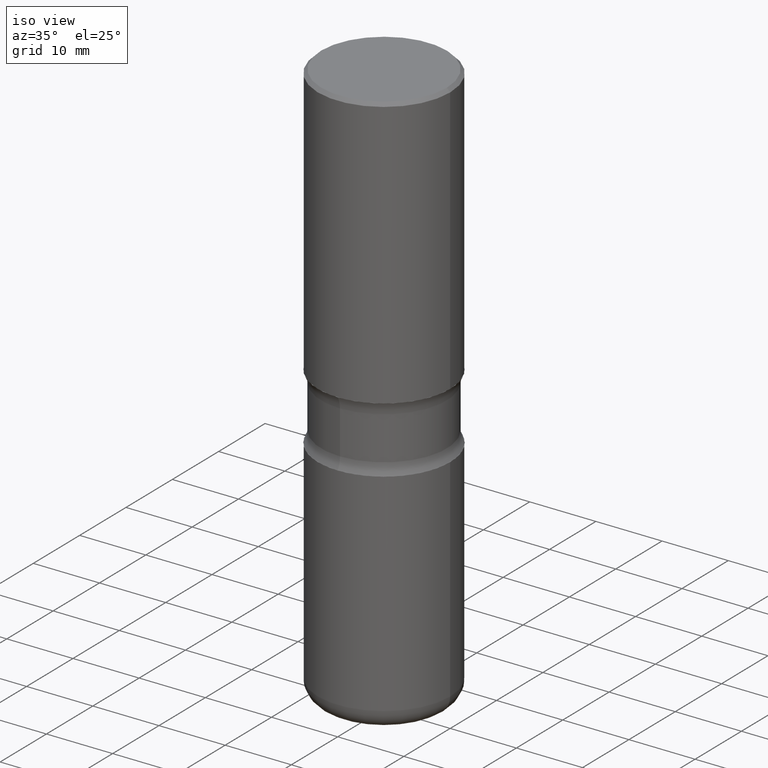
[diagram: clean part render]
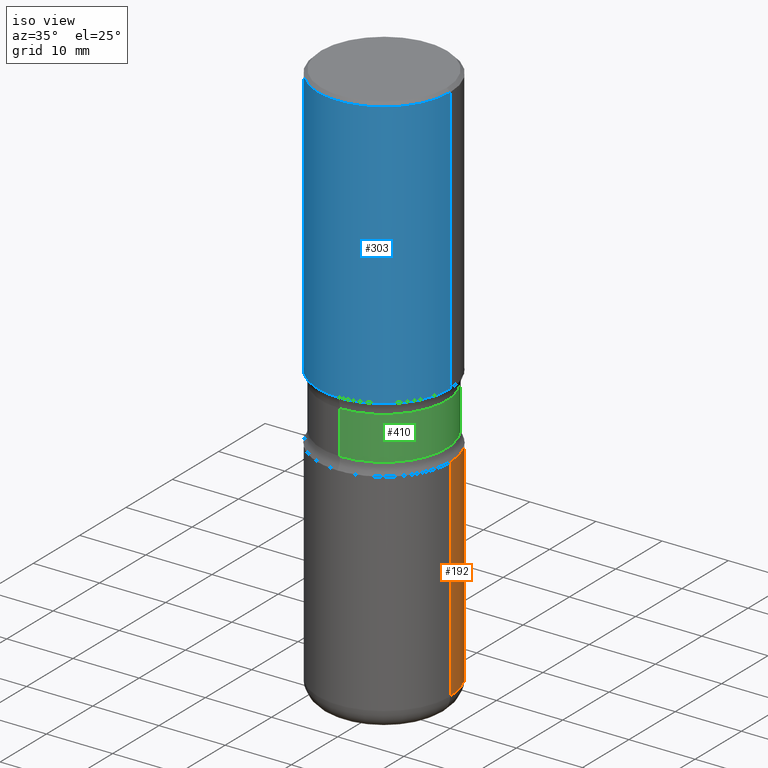
[diagram: same view with three faces highlighted in distinct colors, each labeled with its STEP entity id]
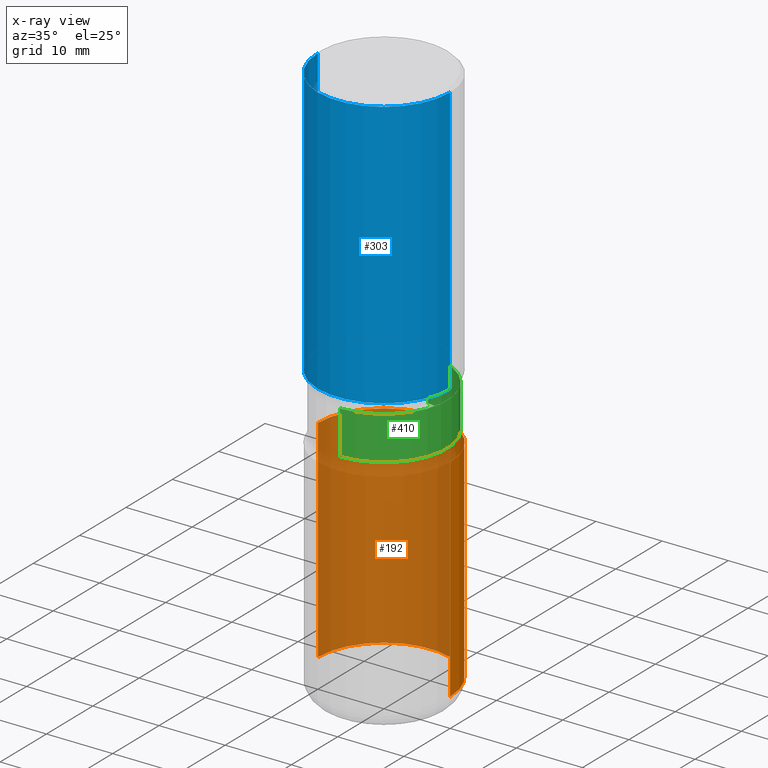
[diagram: x-ray of the same camera — body ghosted, the three highlighted faces saturated]
A machine part, iso view with three faces highlighted in distinct colors.
The next image is the same camera in x-ray (body ghosted, the three faces saturated) — at least one of them is partly hidden behind the body in this view.
Their STEP definitions:

[orange] entity #192 — the highlighted cylindrical surface (partial cylindrical patch) has radius 10 mm, axis along (-0, 0, 1).
#7 = VERTEX_POINT ( 'NONE', #78 ) ;
#10 = DIRECTION ( 'NONE',  ( -2.445468806185136877E-29, 3.491481338843145188E-15, 1.000000000000000000 ) ) ;
#18 = DIRECTION ( 'NONE',  ( -2.445468806185136597E-29, 3.491481338843145583E-15, 1.000000000000000000 ) ) ;
#23 = VECTOR ( 'NONE', #10, 39.37007874015748143 ) ;
#29 = CARTESIAN_POINT ( 'NONE',  ( 0.3937000000000006605, -2.749192406205087950E-15, 1.919750796630863254E-29 ) ) ;
#51 = CARTESIAN_POINT ( 'NONE',  ( 0.3937000000000006605, -1.415830597714283597E-14, -3.267700000000000937 ) ) ;
#70 = VERTEX_POINT ( 'NONE', #457 ) ;
#72 = LINE ( 'NONE', #29, #376 ) ;
#78 = CARTESIAN_POINT ( 'NONE',  ( -0.3937000000000006605, -8.611706820250229288E-15, -3.267700000000000937 ) ) ;
#84 = EDGE_LOOP ( 'NONE', ( #322, #154, #244, #459 ) ) ;
#89 = AXIS2_PLACEMENT_3D ( 'NONE', #109, #279, #408 ) ;
#91 = DIRECTION ( 'NONE',  ( 1.000000000000000000, -6.982962677686266711E-15, 4.876176775795936353E-29 ) ) ;
#99 = EDGE_CURVE ( 'NONE', #206, #70, #72, .T. ) ;
#109 = CARTESIAN_POINT ( 'NONE',  ( 4.910012269058516525E-29, -7.010196232129267410E-15, -2.007800000000000029 ) ) ;
#131 = AXIS2_PLACEMENT_3D ( 'NONE', #310, #18, #190 ) ;
#134 = CYLINDRICAL_SURFACE ( 'NONE', #245, 0.3937000000000006605 ) ;
#142 = CIRCLE ( 'NONE', #89, 0.3937000000000007160 ) ;
#145 = VERTEX_POINT ( 'NONE', #479 ) ;
#154 = ORIENTED_EDGE ( 'NONE', *, *, #215, .T. ) ;
#184 = LINE ( 'NONE', #381, #23 ) ;
#190 = DIRECTION ( 'NONE',  ( 1.000000000000000000, -6.982962677686266711E-15, 0.000000000000000000 ) ) ;
#192 = ADVANCED_FACE ( 'NONE', ( #519 ), #134, .T. ) ;
#202 = DIRECTION ( 'NONE',  ( -2.445468806185136877E-29, 3.491481338843145188E-15, 1.000000000000000000 ) ) ;
#206 = VERTEX_POINT ( 'NONE', #51 ) ;
#215 = EDGE_CURVE ( 'NONE', #7, #145, #184, .T. ) ;
#244 = ORIENTED_EDGE ( 'NONE', *, *, #384, .F. ) ;
#245 = AXIS2_PLACEMENT_3D ( 'NONE', #387, #436, #91 ) ;
#279 = DIRECTION ( 'NONE',  ( -2.445468806185136597E-29, 3.491481338843145583E-15, 1.000000000000000000 ) ) ;
#309 = EDGE_CURVE ( 'NONE', #206, #7, #388, .T. ) ;
#310 = CARTESIAN_POINT ( 'NONE',  ( 7.991058417971172834E-29, -1.140911357093774960E-14, -3.267700000000000937 ) ) ;
#322 = ORIENTED_EDGE ( 'NONE', *, *, #309, .T. ) ;
#376 = VECTOR ( 'NONE', #202, 39.37007874015748143 ) ;
#381 = CARTESIAN_POINT ( 'NONE',  ( -0.3937000000000006605, 2.797406750687519125E-15, -1.936584745033359538E-29 ) ) ;
#384 = EDGE_CURVE ( 'NONE', #70, #145, #142, .T. ) ;
#387 = CARTESIAN_POINT ( 'NONE',  ( 0.000000000000000000, 0.000000000000000000, 0.000000000000000000 ) ) ;
#388 = CIRCLE ( 'NONE', #131, 0.3937000000000006605 ) ;
#408 = DIRECTION ( 'NONE',  ( 1.000000000000000000, -6.982962677686268288E-15, 0.000000000000000000 ) ) ;
#436 = DIRECTION ( 'NONE',  ( -2.445468806185136597E-29, 3.491481338843145583E-15, 1.000000000000000000 ) ) ;
#457 = CARTESIAN_POINT ( 'NONE',  ( 0.3937000000000007160, -9.759388638334355360E-15, -2.007800000000000029 ) ) ;
#459 = ORIENTED_EDGE ( 'NONE', *, *, #99, .F. ) ;
#479 = CARTESIAN_POINT ( 'NONE',  ( -0.3937000000000007160, -6.412248150845988194E-15, -2.007800000000000029 ) ) ;
#519 = FACE_OUTER_BOUND ( 'NONE', #84, .T. ) ;

[blue] entity #303 — the highlighted cylindrical surface (partial cylindrical patch) has radius 10 mm, axis along (-0, 0, 1).
#40 = DIRECTION ( 'NONE',  ( -2.445468806185136877E-29, 3.491481338843145188E-15, 1.000000000000000000 ) ) ;
#44 = CARTESIAN_POINT ( 'NONE',  ( -0.3937000000000004940, 2.797406750687517942E-15, -1.936584745033358697E-29 ) ) ;
#46 = CARTESIAN_POINT ( 'NONE',  ( 0.3937000000000006605, -8.384792435231810596E-15, -1.614100000000000090 ) ) ;
#56 = CARTESIAN_POINT ( 'NONE',  ( 0.000000000000000000, 0.000000000000000000, 0.000000000000000000 ) ) ;
#61 = CYLINDRICAL_SURFACE ( 'NONE', #228, 0.3937000000000004940 ) ;
#66 = ORIENTED_EDGE ( 'NONE', *, *, #144, .F. ) ;
#88 = EDGE_CURVE ( 'NONE', #108, #226, #411, .T. ) ;
#94 = DIRECTION ( 'NONE',  ( 1.000000000000000000, -6.982962677686266711E-15, 0.000000000000000000 ) ) ;
#104 = CARTESIAN_POINT ( 'NONE',  ( 3.947231200063429727E-29, -5.635600029026721857E-15, -1.614100000000000090 ) ) ;
#105 = VERTEX_POINT ( 'NONE', #224 ) ;
#108 = VERTEX_POINT ( 'NONE', #46 ) ;
#119 = VERTEX_POINT ( 'NONE', #174 ) ;
#141 = VECTOR ( 'NONE', #434, 39.37007874015748143 ) ;
#144 = EDGE_CURVE ( 'NONE', #119, #226, #536, .T. ) ;
#152 = CIRCLE ( 'NONE', #446, 0.3937000000000006605 ) ;
#159 = EDGE_CURVE ( 'NONE', #105, #119, #467, .T. ) ;
#164 = CARTESIAN_POINT ( 'NONE',  ( 0.3937000000000004940, -2.749192406205086766E-15, 1.919750796630862414E-29 ) ) ;
#174 = CARTESIAN_POINT ( 'NONE',  ( -0.3937000000000003830, 2.679362779428222679E-15, -0.02000000000000013572 ) ) ;
#178 = AXIS2_PLACEMENT_3D ( 'NONE', #304, #218, #94 ) ;
#194 = ORIENTED_EDGE ( 'NONE', *, *, #336, .T. ) ;
#197 = ORIENTED_EDGE ( 'NONE', *, *, #88, .T. ) ;
#218 = DIRECTION ( 'NONE',  ( -2.445468806185136597E-29, 3.491481338843145583E-15, 1.000000000000000000 ) ) ;
#224 = CARTESIAN_POINT ( 'NONE',  ( -0.3937000000000007160, -5.530807721427186863E-17, -1.614100000000000090 ) ) ;
#226 = VERTEX_POINT ( 'NONE', #560 ) ;
#228 = AXIS2_PLACEMENT_3D ( 'NONE', #56, #230, #277 ) ;
#230 = DIRECTION ( 'NONE',  ( -2.445468806185136597E-29, 3.491481338843145583E-15, 1.000000000000000000 ) ) ;
#275 = DIRECTION ( 'NONE',  ( -2.445468806185136597E-29, 3.491481338843145583E-15, 1.000000000000000000 ) ) ;
#277 = DIRECTION ( 'NONE',  ( 1.000000000000000000, -6.982962677686266711E-15, 4.876176775795935793E-29 ) ) ;
#303 = ADVANCED_FACE ( 'NONE', ( #365 ), #61, .T. ) ;
#304 = CARTESIAN_POINT ( 'NONE',  ( 4.890937612370306439E-31, -6.982962677686338448E-17, -0.02000000000000013572 ) ) ;
#327 = ORIENTED_EDGE ( 'NONE', *, *, #159, .F. ) ;
#336 = EDGE_CURVE ( 'NONE', #105, #108, #152, .T. ) ;
#365 = FACE_OUTER_BOUND ( 'NONE', #445, .T. ) ;
#411 = LINE ( 'NONE', #164, #488 ) ;
#434 = DIRECTION ( 'NONE',  ( -2.445468806185136877E-29, 3.491481338843145188E-15, 1.000000000000000000 ) ) ;
#445 = EDGE_LOOP ( 'NONE', ( #327, #194, #197, #66 ) ) ;
#446 = AXIS2_PLACEMENT_3D ( 'NONE', #104, #275, #448 ) ;
#448 = DIRECTION ( 'NONE',  ( 1.000000000000000000, -6.982962677686266711E-15, 0.000000000000000000 ) ) ;
#467 = LINE ( 'NONE', #44, #141 ) ;
#488 = VECTOR ( 'NONE', #40, 39.37007874015748143 ) ;
#536 = CIRCLE ( 'NONE', #178, 0.3937000000000003830 ) ;
#560 = CARTESIAN_POINT ( 'NONE',  ( 0.3937000000000003830, -2.770807688499518100E-15, -0.02000000000000013572 ) ) ;

[green] entity #410 — the highlighted cylindrical surface (partial cylindrical patch) has radius 9.4869 mm, axis along (0, -0, -1).
#11 = EDGE_LOOP ( 'NONE', ( #19, #438, #332, #276 ) ) ;
#16 = FACE_OUTER_BOUND ( 'NONE', #11, .T. ) ;
#19 = ORIENTED_EDGE ( 'NONE', *, *, #85, .T. ) ;
#30 = DIRECTION ( 'NONE',  ( 2.305016298612844398E-29, -3.692617323746948219E-15, -1.000000000000000000 ) ) ;
#31 = EDGE_CURVE ( 'NONE', #160, #373, #284, .T. ) ;
#39 = DIRECTION ( 'NONE',  ( 6.982962677686264344E-15, 1.000000000000000000, -3.657092360996334478E-15 ) ) ;
#60 = VECTOR ( 'NONE', #30, 39.37007874015748143 ) ;
#77 = DIRECTION ( 'NONE',  ( 2.305016298612844398E-29, -3.692617323746948219E-15, -1.000000000000000000 ) ) ;
#85 = EDGE_CURVE ( 'NONE', #311, #160, #123, .T. ) ;
#123 = CIRCLE ( 'NONE', #478, 0.3735000000000000542 ) ;
#124 = CIRCLE ( 'NONE', #299, 0.3735000000000002207 ) ;
#160 = VERTEX_POINT ( 'NONE', #351 ) ;
#162 = DIRECTION ( 'NONE',  ( 6.982962677686265922E-15, 1.000000000000000000, -4.388510833195602005E-15 ) ) ;
#169 = CARTESIAN_POINT ( 'NONE',  ( 2.608136560115902248E-15, 0.3734999999999880638, -3.385800000000001919 ) ) ;
#172 = CARTESIAN_POINT ( 'NONE',  ( 4.159572563337033897E-29, -5.807997939890574032E-15, -1.682231930840099476 ) ) ;
#210 = DIRECTION ( 'NONE',  ( 2.305016298612844398E-29, -3.692617323746948219E-15, -1.000000000000000000 ) ) ;
#219 = VECTOR ( 'NONE', #549, 39.37007874015748143 ) ;
#276 = ORIENTED_EDGE ( 'NONE', *, *, #494, .F. ) ;
#284 = LINE ( 'NONE', #290, #219 ) ;
#290 = CARTESIAN_POINT ( 'NONE',  ( -2.562396002167586553E-15, -0.3735000000000122111, -3.385799999999998811 ) ) ;
#291 = CARTESIAN_POINT ( 'NONE',  ( 4.752967058016124605E-29, -6.758611084008786993E-15, -1.939668069159900421 ) ) ;
#299 = AXIS2_PLACEMENT_3D ( 'NONE', #291, #77, #39 ) ;
#311 = VERTEX_POINT ( 'NONE', #484 ) ;
#316 = DIRECTION ( 'NONE',  ( 2.305016298612844398E-29, -3.692617323746948219E-15, -1.000000000000000000 ) ) ;
#319 = CARTESIAN_POINT ( 'NONE',  ( 2.608136560115869116E-15, 0.3734999999999934484, -1.939668069159901753 ) ) ;
#332 = ORIENTED_EDGE ( 'NONE', *, *, #486, .F. ) ;
#351 = CARTESIAN_POINT ( 'NONE',  ( -2.631687031945120480E-15, -0.3735000000000058828, -1.682231930840098144 ) ) ;
#355 = CYLINDRICAL_SURFACE ( 'NONE', #480, 0.3735000000000001097 ) ;
#364 = VERTEX_POINT ( 'NONE', #319 ) ;
#373 = VERTEX_POINT ( 'NONE', #493 ) ;
#410 = ADVANCED_FACE ( 'NONE', ( #16 ), #355, .T. ) ;
#422 = DIRECTION ( 'NONE',  ( 6.982962677686265922E-15, 1.000000000000000000, -3.657092360996336056E-15 ) ) ;
#438 = ORIENTED_EDGE ( 'NONE', *, *, #31, .T. ) ;
#478 = AXIS2_PLACEMENT_3D ( 'NONE', #172, #210, #422 ) ;
#480 = AXIS2_PLACEMENT_3D ( 'NONE', #529, #316, #162 ) ;
#484 = CARTESIAN_POINT ( 'NONE',  ( 2.608136560115862410E-15, 0.3734999999999942810, -1.682231930840100809 ) ) ;
#486 = EDGE_CURVE ( 'NONE', #364, #373, #124, .T. ) ;
#493 = CARTESIAN_POINT ( 'NONE',  ( -2.631687031945114169E-15, -0.3735000000000069376, -1.939668069159899089 ) ) ;
#494 = EDGE_CURVE ( 'NONE', #311, #364, #553, .T. ) ;
#529 = CARTESIAN_POINT ( 'NONE',  ( 8.086324728547017721E-29, -1.209862290425256339E-14, -3.385800000000000143 ) ) ;
#549 = DIRECTION ( 'NONE',  ( 2.305016298612844398E-29, -3.692617323746948219E-15, -1.000000000000000000 ) ) ;
#553 = LINE ( 'NONE', #169, #60 ) ;